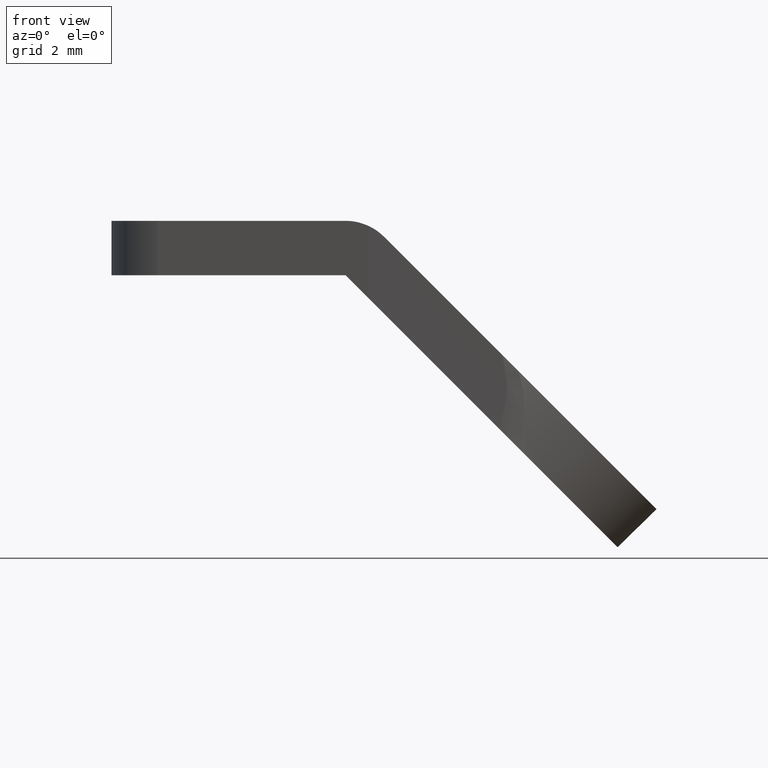
[diagram: clean part render]
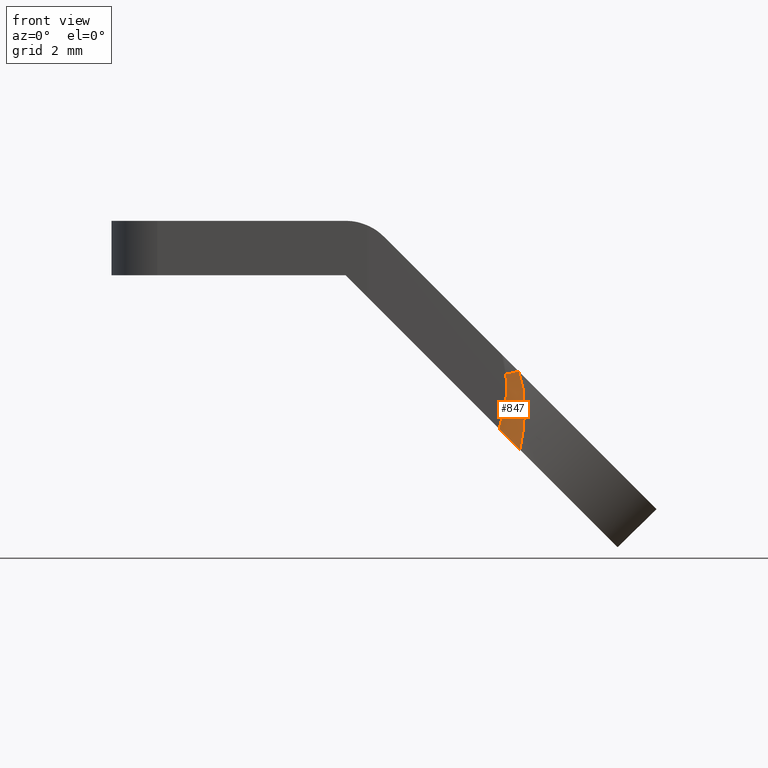
[diagram: same view with one face highlighted and labeled with its STEP entity id]
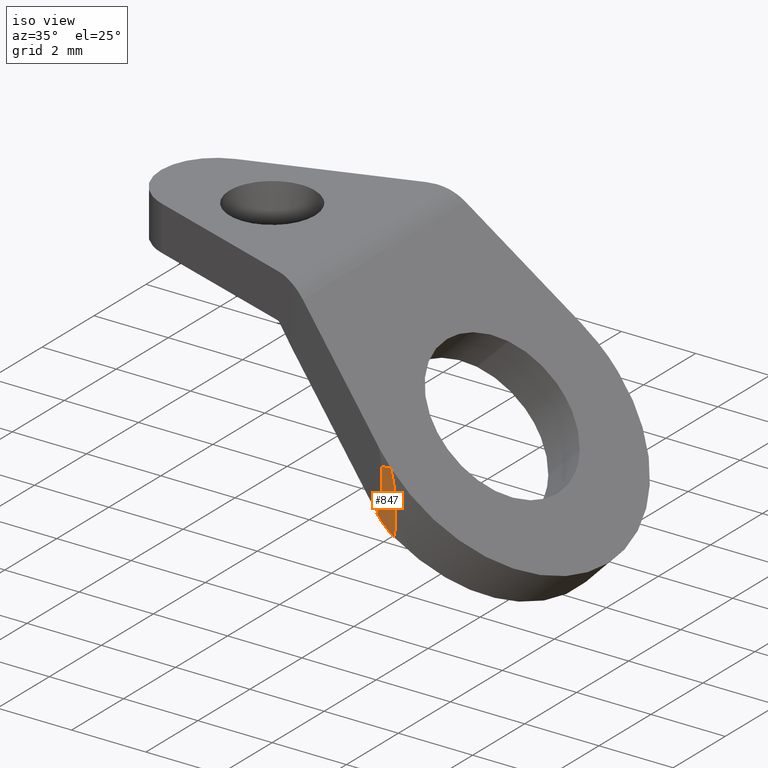
[diagram: same view with one face highlighted and labeled with its STEP entity id]
A machine part, front view. The second image highlights one B-rep face of the part: STEP entity #847.
A second angle (iso view) of the same face is appended — the face is thin or edge-on in the first view.
In plain terms, the highlighted face is a freeform B-spline surface patch.
Its self-contained STEP definition (entity closure, byte-faithful):
#775=CARTESIAN_POINT('',(8.697414770391957,-3.940272594257907,-3.385479714728986));
#776=CARTESIAN_POINT('',(8.769619044368442,-3.962226370133101,-3.727530653393754));
#777=CARTESIAN_POINT('',(8.689213081251404,-3.937778863135448,-4.226523484492582));
#778=CARTESIAN_POINT('',(8.459522616680914,-3.867941266243438,-4.860044376328674));
#779=CARTESIAN_POINT('',(8.837047939689287,-3.982728187738359,-3.353279328902384));
#780=CARTESIAN_POINT('',(8.952849409153599,-4.017937730979774,-3.740224145237180));
#781=CARTESIAN_POINT('',(8.915704896747347,-4.006643907836567,-4.285175511971461));
#782=CARTESIAN_POINT('',(8.730168918351017,-3.950231523053596,-4.967241833307989));
#783=CARTESIAN_POINT('',(8.983079645932991,-3.988812898832842,-3.322062645932769));
#784=CARTESIAN_POINT('',(9.144084158111856,-4.020181527008079,-3.752966232279417));
#785=CARTESIAN_POINT('',(9.153337677993363,-3.985245938352178,-4.341604963081023));
#786=CARTESIAN_POINT('',(9.010188743912334,-3.885482430240685,-5.061628559222891));
#794=(BOUNDED_SURFACE()B_SPLINE_SURFACE(3,2,((#775,#779,#783),(#776,#780,#784),(#777,#781,#785),(#778,#782,#786)),.UNSPECIFIED.,.F.,.F.,.U.)B_SPLINE_SURFACE_WITH_KNOTS((4,4),(3,3),(0.0,2.222589747326940),(0.0,1.0),.UNSPECIFIED.)GEOMETRIC_REPRESENTATION_ITEM()RATIONAL_B_SPLINE_SURFACE(((1.0,0.992333257500137,1.0),(1.0,0.988804238902262,1.0),(1.0,0.981215349678467,1.0),(1.0,0.969663363432952,1.0)))REPRESENTATION_ITEM('')SURFACE());
#795=CARTESIAN_POINT('',(9.012731663986450,-3.887259028580915,-5.048770663986490));
#796=VERTEX_POINT('',#795);
#797=CARTESIAN_POINT('',(8.551695888843570,-3.895966634373360,-4.587734888843540));
#798=VERTEX_POINT('',#797);
#799=CARTESIAN_POINT('',(9.012731663986450,-3.887259028580915,-5.048770663986490));
#800=CARTESIAN_POINT('',(8.960953380400902,-3.905009619672759,-4.996992380400916));
#801=CARTESIAN_POINT('',(8.850659936329127,-3.930277219941075,-4.886698936329117));
#802=CARTESIAN_POINT('',(8.695121227552095,-3.930131479512469,-4.731160227552054));
#803=CARTESIAN_POINT('',(8.594319307845845,-3.908882024230772,-4.630358307845823));
#804=CARTESIAN_POINT('',(8.551695888843570,-3.895966634373360,-4.587734888843540));
#805=B_SPLINE_CURVE_WITH_KNOTS('',3,(#799,#800,#801,#802,#803,#804),.UNSPECIFIED.,.F.,.U.,(4,1,1,4),(7.151864E-010,0.226039109393323,0.472626816159151,0.657567936875430),.UNSPECIFIED.);
#806=EDGE_CURVE('',#796,#798,#805,.T.);
#807=ORIENTED_EDGE('',*,*,#806,.F.);
#808=CARTESIAN_POINT('',(8.983079645932680,-3.988812898832820,-3.322062645932690));
#809=VERTEX_POINT('',#808);
#810=CARTESIAN_POINT('',(8.983079645932680,-3.988812898832820,-3.322062645932690));
#811=CARTESIAN_POINT('',(9.225032809007301,-4.035952812513746,-3.969612731633352));
#812=CARTESIAN_POINT('',(9.012731663986450,-3.887259028580915,-5.048770663986490));
#820=(BOUNDED_CURVE()B_SPLINE_CURVE(2,(#810,#811,#812),.UNSPECIFIED.,.F.,.U.)CURVE()GEOMETRIC_REPRESENTATION_ITEM()QUASI_UNIFORM_CURVE()RATIONAL_B_SPLINE_CURVE((1.0,0.987794944269980,1.0))REPRESENTATION_ITEM(''));
#821=EDGE_CURVE('',#809,#796,#820,.T.);
#822=ORIENTED_EDGE('',*,*,#821,.F.);
#823=CARTESIAN_POINT('',(8.697414770391831,-3.940272594257900,-3.385479714729040));
#824=VERTEX_POINT('',#823);
#825=CARTESIAN_POINT('',(8.983079645932680,-3.988812898832820,-3.322062645932690));
#826=CARTESIAN_POINT('',(8.886220784629543,-3.984796762307759,-3.342766559648677));
#827=CARTESIAN_POINT('',(8.790024462287335,-3.968442154526124,-3.364122533811703));
#828=CARTESIAN_POINT('',(8.697414770391831,-3.940272594257900,-3.385479714729040));
#829=B_SPLINE_CURVE_WITH_KNOTS('',3,(#825,#826,#827,#828),.UNSPECIFIED.,.F.,.U.,(4,4),(2.110694E-010,0.297379223257745),.UNSPECIFIED.);
#830=EDGE_CURVE('',#809,#824,#829,.T.);
#831=ORIENTED_EDGE('',*,*,#830,.T.);
#832=CARTESIAN_POINT('',(8.551695888843570,-3.895966634373360,-4.587734888843540));
#833=CARTESIAN_POINT('',(8.790227761290103,-3.968492469457371,-3.825159652007107));
#834=CARTESIAN_POINT('',(8.697414770391831,-3.940272594257900,-3.385479714729040));
#842=(BOUNDED_CURVE()B_SPLINE_CURVE(2,(#832,#833,#834),.UNSPECIFIED.,.F.,.U.)CURVE()GEOMETRIC_REPRESENTATION_ITEM()QUASI_UNIFORM_CURVE()RATIONAL_B_SPLINE_CURVE((1.0,0.991029640579179,1.0))REPRESENTATION_ITEM(''));
#843=EDGE_CURVE('',#798,#824,#842,.T.);
#844=ORIENTED_EDGE('',*,*,#843,.F.);
#845=EDGE_LOOP('',(#807,#822,#831,#844));
#846=FACE_OUTER_BOUND('',#845,.T.);
#847=ADVANCED_FACE('',(#846),#794,.T.);